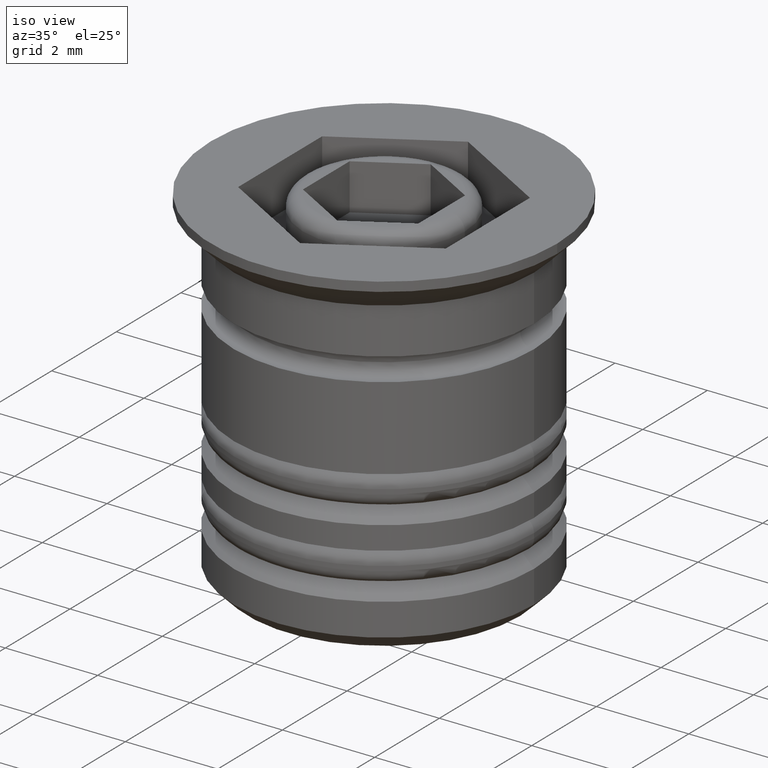
[diagram: clean part render]
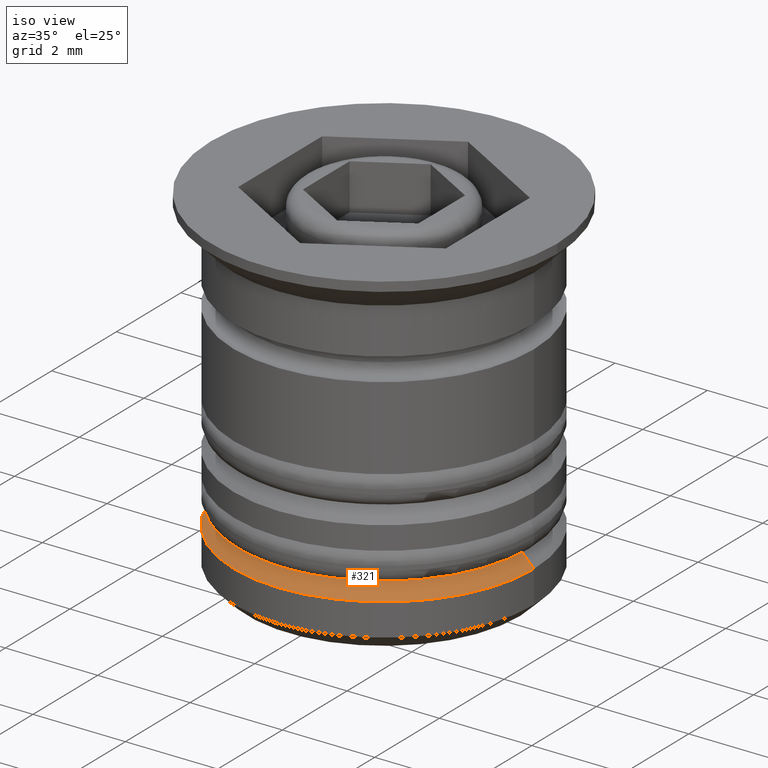
[diagram: same view with one face highlighted and labeled with its STEP entity id]
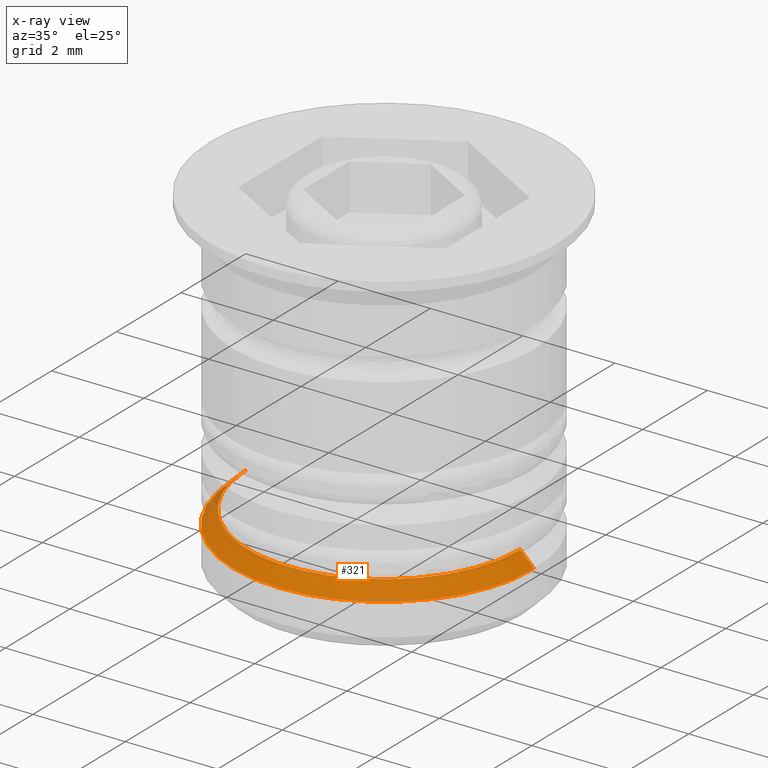
[diagram: x-ray of the same camera — body ghosted, the highlighted face saturated]
A machine part, iso view. The second image highlights one B-rep face of the part: STEP entity #321.
The next image is the same camera in x-ray: the body ghosted, the highlighted face saturated — about 3% of this face is hidden behind the body in this view.
In plain terms, the highlighted conical surface has half-angle 45 deg.
Its self-contained STEP definition (entity closure, byte-faithful):
#23 = VERTEX_POINT ( 'NONE', #1418 ) ;
#95 = EDGE_CURVE ( 'NONE', #23, #1348, #1441, .T. ) ;
#115 = CARTESIAN_POINT ( 'NONE',  ( 0.000000000000000000, 0.000000000000000000, -6.200000000000006395 ) ) ;
#134 = DIRECTION ( 'NONE',  ( -1.000000000000000000, 0.000000000000000000, 0.000000000000000000 ) ) ;
#197 = CARTESIAN_POINT ( 'NONE',  ( -2.950000000000000178, 3.612708057484692097E-16, -6.200000000000006395 ) ) ;
#255 = DIRECTION ( 'NONE',  ( -0.7071067811865507924, 0.000000000000000000, -0.7071067811865441310 ) ) ;
#303 = VECTOR ( 'NONE', #815, 1000.000000000000000 ) ;
#321 = ADVANCED_FACE ( 'NONE', ( #553 ), #417, .T. ) ;
#346 = CARTESIAN_POINT ( 'NONE',  ( 2.950000000000000178, 0.000000000000000000, -6.200000000000006395 ) ) ;
#388 = AXIS2_PLACEMENT_3D ( 'NONE', #1769, #1075, #1461 ) ;
#402 = VERTEX_POINT ( 'NONE', #346 ) ;
#417 = CONICAL_SURFACE ( 'NONE', #1125, 2.749999999999991562, 0.7853981633974530530 ) ;
#481 = EDGE_CURVE ( 'NONE', #963, #1348, #682, .T. ) ;
#547 = DIRECTION ( 'NONE',  ( -0.000000000000000000, -0.000000000000000000, 1.000000000000000000 ) ) ;
#553 = FACE_OUTER_BOUND ( 'NONE', #861, .T. ) ;
#561 = ORIENTED_EDGE ( 'NONE', *, *, #95, .F. ) ;
#656 = AXIS2_PLACEMENT_3D ( 'NONE', #115, #547, #134 ) ;
#673 = ORIENTED_EDGE ( 'NONE', *, *, #1100, .F. ) ;
#682 = LINE ( 'NONE', #1649, #1442 ) ;
#710 = CARTESIAN_POINT ( 'NONE',  ( 0.000000000000000000, 0.000000000000000000, -6.000000000000000000 ) ) ;
#815 = DIRECTION ( 'NONE',  ( 0.7071067811865507924, 8.659560562354974766E-17, -0.7071067811865441310 ) ) ;
#861 = EDGE_LOOP ( 'NONE', ( #1368, #673, #978, #561 ) ) ;
#963 = VERTEX_POINT ( 'NONE', #197 ) ;
#978 = ORIENTED_EDGE ( 'NONE', *, *, #481, .T. ) ;
#1075 = DIRECTION ( 'NONE',  ( 0.000000000000000000, 0.000000000000000000, -1.000000000000000000 ) ) ;
#1100 = EDGE_CURVE ( 'NONE', #963, #402, #1468, .T. ) ;
#1116 = DIRECTION ( 'NONE',  ( -1.000000000000000000, 0.000000000000000000, 0.000000000000000000 ) ) ;
#1125 = AXIS2_PLACEMENT_3D ( 'NONE', #710, #1696, #1116 ) ;
#1266 = CARTESIAN_POINT ( 'NONE',  ( -3.250000000000000444, 3.980102097228898231E-16, -6.500000000000004441 ) ) ;
#1348 = VERTEX_POINT ( 'NONE', #1266 ) ;
#1368 = ORIENTED_EDGE ( 'NONE', *, *, #1778, .F. ) ;
#1418 = CARTESIAN_POINT ( 'NONE',  ( 3.250000000000000444, 0.000000000000000000, -6.500000000000004441 ) ) ;
#1441 = CIRCLE ( 'NONE', #388, 3.250000000000000444 ) ;
#1442 = VECTOR ( 'NONE', #255, 1000.000000000000000 ) ;
#1461 = DIRECTION ( 'NONE',  ( -1.000000000000000000, 0.000000000000000000, 0.000000000000000000 ) ) ;
#1468 = CIRCLE ( 'NONE', #656, 2.950000000000000178 ) ;
#1521 = CARTESIAN_POINT ( 'NONE',  ( 2.749999999999991562, 3.367778697655211151E-16, -6.000000000000000000 ) ) ;
#1621 = LINE ( 'NONE', #1521, #303 ) ;
#1649 = CARTESIAN_POINT ( 'NONE',  ( -2.749999999999991562, 0.000000000000000000, -6.000000000000000000 ) ) ;
#1696 = DIRECTION ( 'NONE',  ( 0.000000000000000000, 0.000000000000000000, -1.000000000000000000 ) ) ;
#1769 = CARTESIAN_POINT ( 'NONE',  ( 0.000000000000000000, 0.000000000000000000, -6.500000000000004441 ) ) ;
#1778 = EDGE_CURVE ( 'NONE', #402, #23, #1621, .T. ) ;